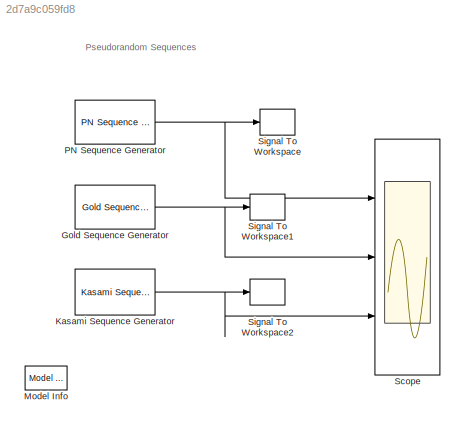
MODEL slx_2d7a9c059fd8
KIND model
BLOCK [Reference] Gold Sequence Generator  REF=commseqgen2/Gold Sequence
Generator
  Ports = [0, 1]
  SourceBlock = commseqgen2/Gold Sequence\nGenerator
  SourceType = Gold Sequence Generator
  frameBased = off
  genPoly1 = [1 0 0 0 0 1 1]
  genPoly2 = [1 1 0 0 1 1 1]
  index = [4]
  iniState1 = [0 0 0 0 0 1]
  iniState2 = [0 0 0 0 0 1]
  maxOutSize = [10 1]
  maxOutSizeMode = Dialog parameter
  outDataType = double
  outVarSiz = off
  reset = off
  sampPerFrame = 1
  shift = 0
  ts = 1
BLOCK [Reference] Kasami Sequence Generator  REF=commseqgen2/Kasami
Sequence
Generator
  Ports = [0, 1]
  SourceBlock = commseqgen2/Kasami\nSequence\nGenerator
  SourceType = Kasami Sequence Generator
  codeIdx = 3
  frameBased = off
  genPoly = [1 0 0 0 0 1 1]
  iniState = [0 0 0 0 0 1]
  maxOutSize = [10 1]
  maxOutSizeMode = Dialog parameter
  outDataType = double
  outVarSiz = off
  reset = off
  sampPerFrame = 1
  shift = 0
  ts = 1
BLOCK [Reference] Model Info  REF=simulink/Model-Wide
Utilities/Model Info
  BlockCM = None
  DisplayStringWithTags = Info
  Frame = on
  HorizontalTextAlignment = Center
  InitialBlockCM = None
  LeftAlignmentValue = 0.5
  MaskDisplayString = Info
  Ports = []
  SourceBlock = simulink/Model-Wide\nUtilities/Model Info
  SourceBlockDiagram = doc_pnseq
  SourceType = CMBlock
  TagMaxNumber = 20
BLOCK [Reference] PN Sequence Generator  REF=commseqgen2/PN Sequence
Generator
  Ports = [0, 1]
  SourceBlock = commseqgen2/PN Sequence\nGenerator
  SourceType = PN Sequence Generator
  Ts = 1
  bitPackDataSigned = off
  bitPackedOutDType = double
  bitPackedOutputs = off
  frameBased = off
  ini_sta = [0 0 0 0 0 1]
  maxOutSize = [10 1]
  maxOutSizeMode = Dialog parameter
  numPackedBits = 8
  outBitMaskSource = Dialog parameter
  outDataType = double
  outVarSiz = off
  poly = [1 0 0 0 0 1 1]
  reset = off
  sampPerFrame = 1
  shift = 0
BLOCK [Scope] Scope
  DataFormat = StructureWithTime
  Floating = off
  NumInputPorts = 3
  Ports = [3]
  SampleTime = 0
  ShowLegends = off
  YMax = 1.5~1.5~1.5
  YMin = -0.5~-0.5~-0.5
BLOCK [SignalToWorkspace] Signal To Workspace
  CopyFcn = dspblkcopystw(gcbh);
  MaxDataPoints = inf
  Ports = [1]
  Save2DSignal = 3-D array (concatenate along third dimension)
  VariableName = pn
BLOCK [SignalToWorkspace] Signal To Workspace1
  CopyFcn = dspblkcopystw(gcbh);
  MaxDataPoints = inf
  Ports = [1]
  Save2DSignal = 3-D array (concatenate along third dimension)
  VariableName = gold
BLOCK [SignalToWorkspace] Signal To Workspace2
  CopyFcn = dspblkcopystw(gcbh);
  MaxDataPoints = inf
  Ports = [1]
  Save2DSignal = 3-D array (concatenate along third dimension)
  VariableName = kas
ANNOTATION (root): Pseudorandom Sequences
NET Gold Sequence Generator:1 -> Scope:2, Signal To Workspace1:1
NET Kasami Sequence Generator:1 -> Scope:3, Signal To Workspace2:1
NET PN Sequence Generator:1 -> Scope:1, Signal To Workspace:1
note: NET lines group one-source signal fan-out (src -> all destinations, sorted); 1:1 wires keep LINE
